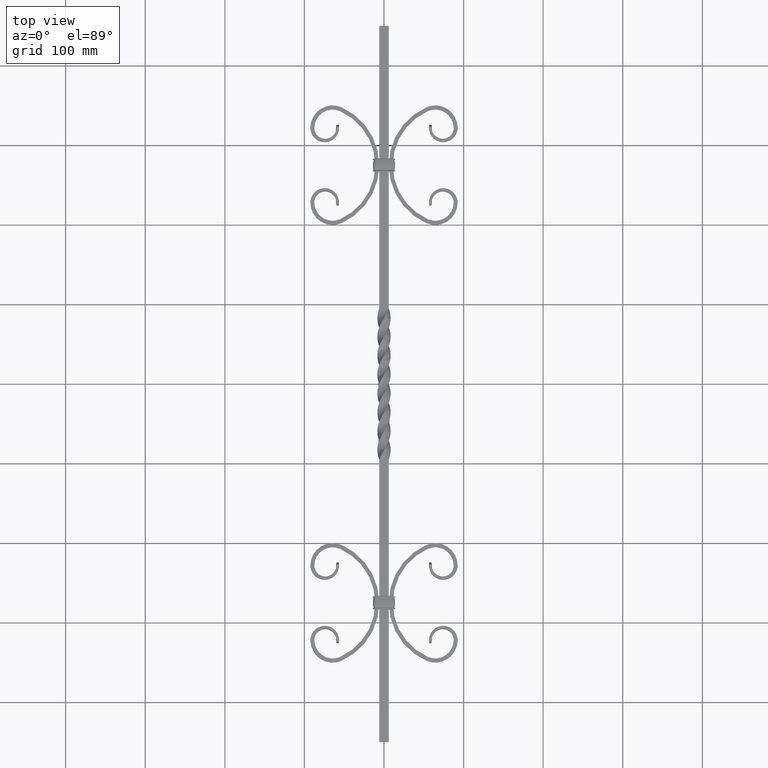
[diagram: clean part render]
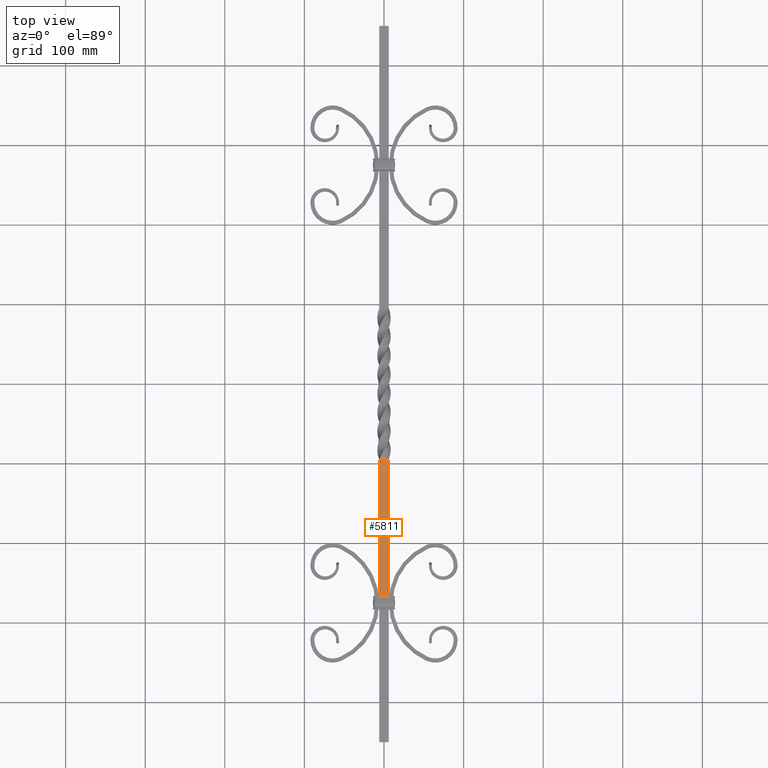
[diagram: same view with one face highlighted and labeled with its STEP entity id]
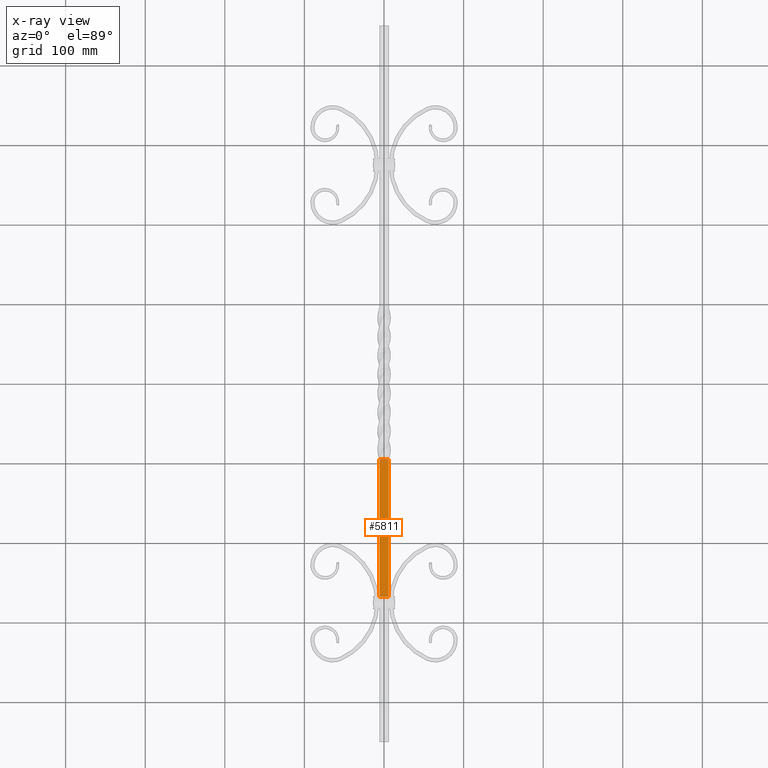
[diagram: x-ray of the same camera — body ghosted, the highlighted face saturated]
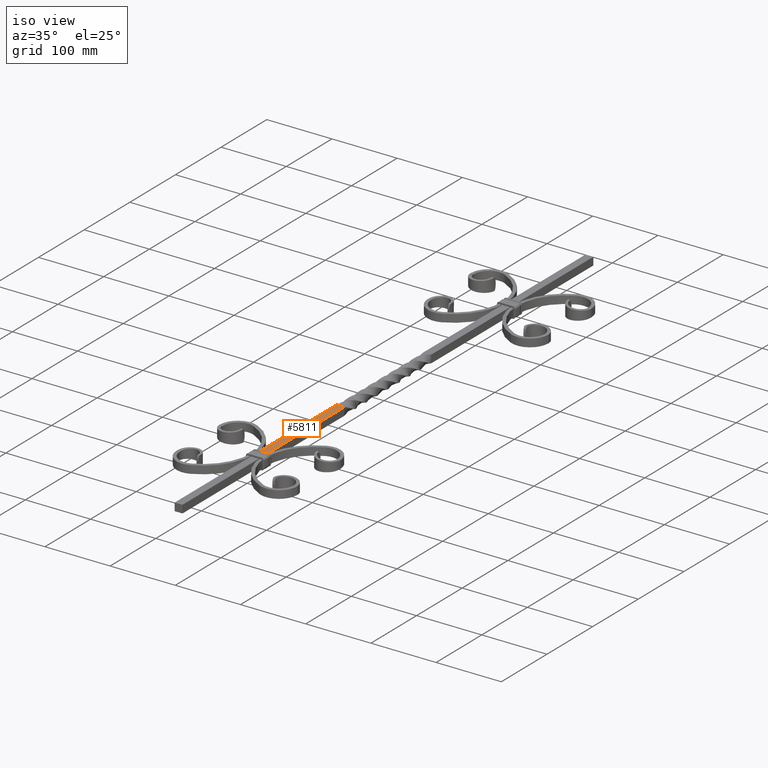
[diagram: same view with one face highlighted and labeled with its STEP entity id]
A machine part, top view. The second image highlights one B-rep face of the part: STEP entity #5811.
The next image is the same camera in x-ray: the body ghosted, the highlighted face saturated — about 0% of this face is hidden behind the body in this view.
A second angle (iso view) of the same face is appended — the face is thin or edge-on in the first view.
In plain terms, the highlighted planar face has unit normal (0, 0, -1).
Its self-contained STEP definition (entity closure, byte-faithful):
#452 = EDGE_CURVE ( 'NONE', #11127, #1065, #12237, .T. ) ;
#903 = VERTEX_POINT ( 'NONE', #21330 ) ;
#1065 = VERTEX_POINT ( 'NONE', #12648 ) ;
#1123 = B_SPLINE_CURVE_WITH_KNOTS ( 'NONE', 3,
 ( #1166, #5062, #10993, #10833 ),
 .UNSPECIFIED., .F., .F.,
 ( 4, 4 ),
 ( 0.000000000000000000, 0.4859154929577463311 ),
 .UNSPECIFIED. ) ;
#1166 = CARTESIAN_POINT ( 'NONE',  ( -5.999999978876454421, -94.99999992951283900, 6.000000036602284759 ) ) ;
#1307 = EDGE_LOOP ( 'NONE', ( #11659, #5356, #10174, #14887 ) ) ;
#1605 = CARTESIAN_POINT ( 'NONE',  ( -5.999999999999998224, -95.00000000000002842, 5.999999999999999112 ) ) ;
#4492 = VERTEX_POINT ( 'NONE', #8671 ) ;
#5062 = CARTESIAN_POINT ( 'NONE',  ( -5.999999999999998224, -152.5000000000000284, 6.000000000000000000 ) ) ;
#5231 = EDGE_CURVE ( 'NONE', #903, #1065, #1123, .T. ) ;
#5356 = ORIENTED_EDGE ( 'NONE', *, *, #17434, .F. ) ;
#5811 = ADVANCED_FACE ( 'NONE', ( #15258 ), #13139, .F. ) ;
#5844 = EDGE_CURVE ( 'NONE', #903, #4492, #19734, .T. ) ;
#7296 = DIRECTION ( 'NONE',  ( 0.000000000000000000, 0.000000000000000000, -1.000000000000000000 ) ) ;
#8671 = CARTESIAN_POINT ( 'NONE',  ( 6.000000036602328279, -94.99999992951285321, 5.999999978876450868 ) ) ;
#10174 = ORIENTED_EDGE ( 'NONE', *, *, #5844, .F. ) ;
#10833 = CARTESIAN_POINT ( 'NONE',  ( -5.999999978876452644, -267.5000000000000000, 5.999999999999969802 ) ) ;
#10851 = CARTESIAN_POINT ( 'NONE',  ( 6.000000000000002665, -267.5000000000000000, 5.999999999999969802 ) ) ;
#10993 = CARTESIAN_POINT ( 'NONE',  ( -5.999999999999998224, -210.0000000000000284, 6.000000000000000000 ) ) ;
#11009 = DIRECTION ( 'NONE',  ( -1.000000000000000000, 0.000000000000000000, -0.000000000000000000 ) ) ;
#11127 = VERTEX_POINT ( 'NONE', #23387 ) ;
#11659 = ORIENTED_EDGE ( 'NONE', *, *, #452, .F. ) ;
#12237 = LINE ( 'NONE', #13986, #16958 ) ;
#12648 = CARTESIAN_POINT ( 'NONE',  ( -5.999999978876452644, -267.5000000000000000, 5.999999999999969802 ) ) ;
#12877 = B_SPLINE_CURVE_WITH_KNOTS ( 'NONE', 3,
 ( #19985, #14561, #18211, #10851 ),
 .UNSPECIFIED., .F., .F.,
 ( 4, 4 ),
 ( 0.000000000000000000, 0.4859154929577464976 ),
 .UNSPECIFIED. ) ;
#13139 = PLANE ( 'NONE',  #13667 ) ;
#13667 = AXIS2_PLACEMENT_3D ( 'NONE', #18772, #7296, #11009 ) ;
#13986 = CARTESIAN_POINT ( 'NONE',  ( 9.999999999999992895, -267.5000000000000000, 5.999999999999969802 ) ) ;
#14138 = DIRECTION ( 'NONE',  ( -1.000000000000000000, 0.000000000000000000, -0.000000000000000000 ) ) ;
#14561 = CARTESIAN_POINT ( 'NONE',  ( 6.000000000000002665, -152.5000000000000284, 5.999999999999999112 ) ) ;
#14887 = ORIENTED_EDGE ( 'NONE', *, *, #5231, .T. ) ;
#15258 = FACE_OUTER_BOUND ( 'NONE', #1307, .T. ) ;
#16958 = VECTOR ( 'NONE', #14138, 1000.000000000000000 ) ;
#17434 = EDGE_CURVE ( 'NONE', #4492, #11127, #12877, .T. ) ;
#18211 = CARTESIAN_POINT ( 'NONE',  ( 6.000000000000002665, -210.0000000000000568, 5.999999999999999112 ) ) ;
#18522 = VECTOR ( 'NONE', #22724, 1000.000000000000000 ) ;
#18772 = CARTESIAN_POINT ( 'NONE',  ( -5.999999999999998224, 450.0000000000000000, 5.999999999999999112 ) ) ;
#19734 = LINE ( 'NONE', #1605, #18522 ) ;
#19985 = CARTESIAN_POINT ( 'NONE',  ( 6.000000036602328279, -94.99999992951285321, 5.999999978876450868 ) ) ;
#21330 = CARTESIAN_POINT ( 'NONE',  ( -5.999999978876454421, -94.99999992951283900, 6.000000036602284759 ) ) ;
#22724 = DIRECTION ( 'NONE',  ( 1.000000000000000000, -0.000000000000000000, 0.000000000000000000 ) ) ;
#23387 = CARTESIAN_POINT ( 'NONE',  ( 6.000000000000002665, -267.5000000000000000, 5.999999999999969802 ) ) ;